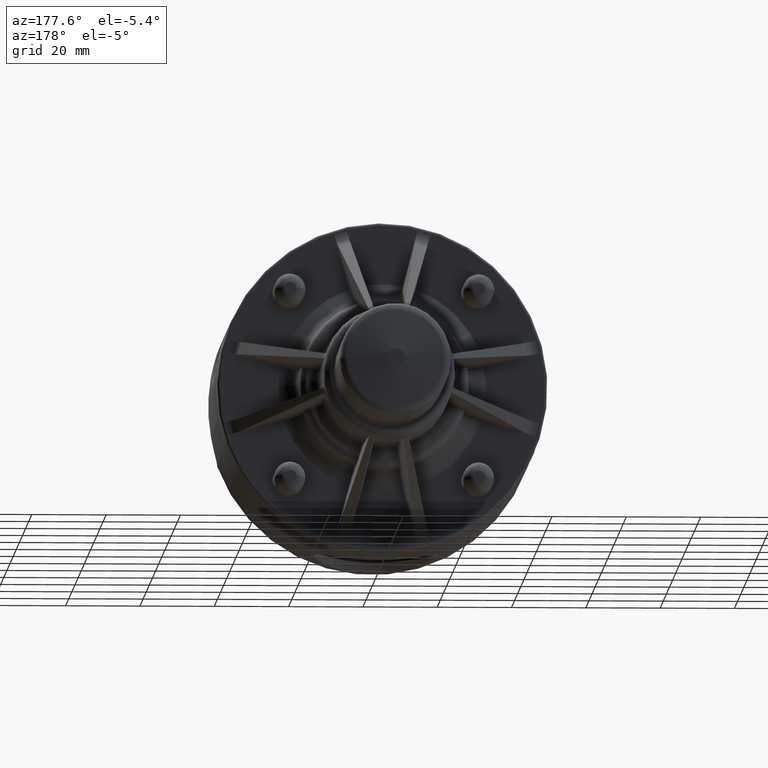
[diagram: clean part render]
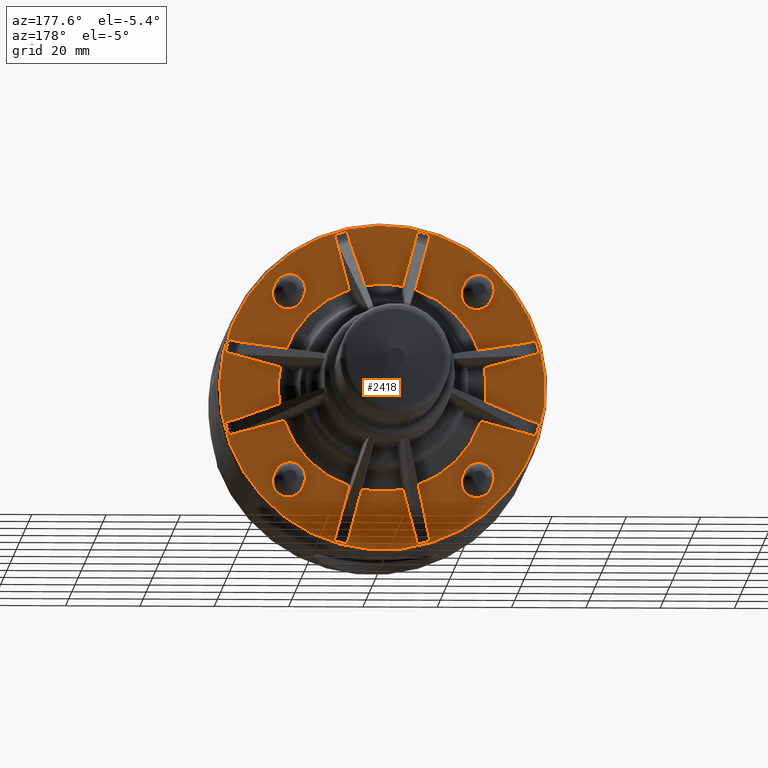
[diagram: same view with one face highlighted and labeled with its STEP entity id]
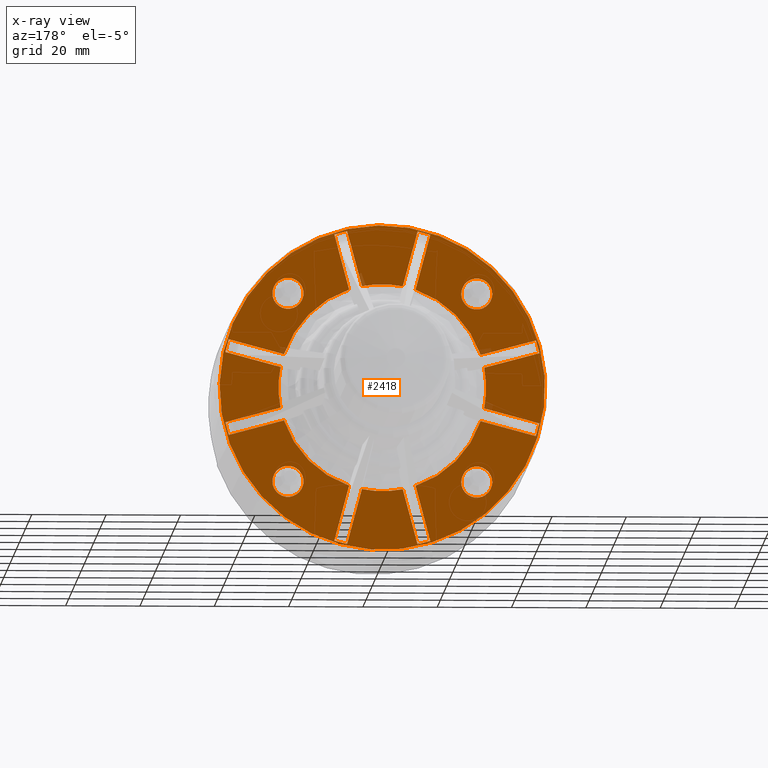
[diagram: x-ray of the same camera — body ghosted, the highlighted face saturated]
A machine part, auxiliary view. The second image highlights one B-rep face of the part: STEP entity #2418.
The next image is the same camera in x-ray: the body ghosted, the highlighted face saturated — about 1% of this face is hidden behind the body in this view.
In plain terms, the highlighted planar face has unit normal (0, 1, 0).
Its self-contained STEP definition (entity closure, byte-faithful):
#434=CARTESIAN_POINT('',(-0.835151011402223,2.555000000000000,-1.000151011402222));
#435=VERTEX_POINT('',#434);
#436=CARTESIAN_POINT('',(-1.000151011402223,2.555000000000000,-1.000151011402222));
#437=DIRECTION('',(0.0,-1.0,0.0));
#438=DIRECTION('',(-1.0,0.0,0.0));
#439=AXIS2_PLACEMENT_3D('',#436,#437,#438);
#440=CIRCLE('',#439,0.165000000000000);
#441=EDGE_CURVE('',#435,#435,#440,.T.);
#697=CARTESIAN_POINT('',(-0.835151011402223,2.555000000000000,0.999848988597778));
#698=VERTEX_POINT('',#697);
#699=CARTESIAN_POINT('',(-1.000151011402223,2.555000000000000,0.999848988597778));
#700=DIRECTION('',(0.0,-1.0,0.0));
#701=DIRECTION('',(-1.0,0.0,0.0));
#702=AXIS2_PLACEMENT_3D('',#699,#700,#701);
#703=CIRCLE('',#702,0.165000000000000);
#704=EDGE_CURVE('',#698,#698,#703,.T.);
#802=CARTESIAN_POINT('',(1.164848988597778,2.555000000000001,-1.000151011402222));
#803=VERTEX_POINT('',#802);
#804=CARTESIAN_POINT('',(0.999848988597778,2.555000000000001,-1.000151011402222));
#805=DIRECTION('',(0.0,-1.0,0.0));
#806=DIRECTION('',(-1.0,0.0,0.0));
#807=AXIS2_PLACEMENT_3D('',#804,#805,#806);
#808=CIRCLE('',#807,0.165000000000000);
#809=EDGE_CURVE('',#803,#803,#808,.T.);
#907=CARTESIAN_POINT('',(1.164848988597778,2.555000000000001,0.999848988597778));
#908=VERTEX_POINT('',#907);
#909=CARTESIAN_POINT('',(0.999848988597778,2.555000000000001,0.999848988597778));
#910=DIRECTION('',(0.0,-1.0,0.0));
#911=DIRECTION('',(-1.0,0.0,0.0));
#912=AXIS2_PLACEMENT_3D('',#909,#910,#911);
#913=CIRCLE('',#912,0.165000000000000);
#914=EDGE_CURVE('',#908,#908,#913,.T.);
#1159=CARTESIAN_POINT('',(-1.627893014331028,2.555000000000001,0.508661951182970));
#1160=VERTEX_POINT('',#1159);
#1178=CARTESIAN_POINT('',(-1.664127680645382,2.555000000000001,0.373432335502499));
#1179=VERTEX_POINT('',#1178);
#1187=CARTESIAN_POINT('',(-1.664127680645382,2.555000000000001,0.373432335502499));
#1188=DIRECTION('',(0.258819045102522,0.0,0.965925826289068));
#1189=VECTOR('',#1188,0.140000000000002);
#1190=LINE('',#1187,#1189);
#1191=EDGE_CURVE('',#1179,#1160,#1190,.T.);
#1287=CARTESIAN_POINT('',(-1.042247513039789,2.555000000000000,0.351738712061063));
#1288=VERTEX_POINT('',#1287);
#1289=CARTESIAN_POINT('',(-1.042247513039789,2.555000000000001,0.351738712061063));
#1290=DIRECTION('',(-0.965925826289068,0.0,0.258819045102521));
#1291=VECTOR('',#1290,0.606304837651143);
#1292=LINE('',#1289,#1291);
#1293=EDGE_CURVE('',#1288,#1160,#1292,.T.);
#1375=CARTESIAN_POINT('',(-1.078482179354142,2.555000000000000,0.216509096380592));
#1376=VERTEX_POINT('',#1375);
#1377=CARTESIAN_POINT('',(-1.664127680645382,2.555000000000001,0.373432335502499));
#1378=DIRECTION('',(0.965925826289069,0.0,-0.258819045102520));
#1379=VECTOR('',#1378,0.606304837651143);
#1380=LINE('',#1377,#1379);
#1381=EDGE_CURVE('',#1179,#1376,#1380,.T.);
#1497=CARTESIAN_POINT('',(-1.078482179354141,2.555000000000000,-0.216509096380593));
#1498=VERTEX_POINT('',#1497);
#1520=CARTESIAN_POINT('',(-1.154684E-017,2.555000000000000,-6.658976E-034));
#1521=DIRECTION('',(2.259655E-018,-1.0,2.259655E-018));
#1522=DIRECTION('',(0.707106781186548,3.195635E-018,0.707106781186547));
#1523=AXIS2_PLACEMENT_3D('',#1520,#1521,#1522);
#1524=CIRCLE('',#1523,1.099999999999999);
#1525=EDGE_CURVE('',#1376,#1498,#1524,.T.);
#1833=CARTESIAN_POINT('',(1.078482179354141,2.555000000000000,-0.216509096380593));
#1834=VERTEX_POINT('',#1833);
#1857=CARTESIAN_POINT('',(1.078482179354141,2.555000000000000,0.216509096380593));
#1858=VERTEX_POINT('',#1857);
#1880=CARTESIAN_POINT('',(-1.154684E-017,2.555000000000000,-6.658976E-034));
#1881=DIRECTION('',(2.259655E-018,-1.0,2.259655E-018));
#1882=DIRECTION('',(0.707106781186548,3.195635E-018,0.707106781186547));
#1883=AXIS2_PLACEMENT_3D('',#1880,#1881,#1882);
#1884=CIRCLE('',#1883,1.099999999999999);
#1885=EDGE_CURVE('',#1834,#1858,#1884,.T.);
#2165=CARTESIAN_POINT('',(0.998788328425998,2.555000000000001,0.998788328425997));
#2166=DIRECTION('',(0.0,1.0,0.0));
#2167=DIRECTION('',(-0.707106781186547,0.0,0.707106781186548));
#2168=AXIS2_PLACEMENT_3D('',#2165,#2166,#2167);
#2169=PLANE('',#2168);
#2170=CARTESIAN_POINT('',(1.219759197546793,2.555000000000001,1.219759197546793));
#2171=VERTEX_POINT('',#2170);
#2172=CARTESIAN_POINT('',(-1.154684E-017,2.555000000000001,-6.658976E-034));
#2173=DIRECTION('',(2.259655E-018,-1.0,2.259655E-018));
#2174=DIRECTION('',(0.707106781186548,3.195635E-018,0.707106781186547));
#2175=AXIS2_PLACEMENT_3D('',#2172,#2173,#2174);
#2176=CIRCLE('',#2175,1.724999999999998);
#2177=EDGE_CURVE('',#2171,#2171,#2176,.T.);
#2178=ORIENTED_EDGE('',*,*,#2177,.F.);
#2179=EDGE_LOOP('',(#2178));
#2180=FACE_OUTER_BOUND('',#2179,.T.);
#2181=ORIENTED_EDGE('',*,*,#441,.T.);
#2182=EDGE_LOOP('',(#2181));
#2183=FACE_BOUND('',#2182,.T.);
#2184=ORIENTED_EDGE('',*,*,#704,.T.);
#2185=EDGE_LOOP('',(#2184));
#2186=FACE_BOUND('',#2185,.T.);
#2187=ORIENTED_EDGE('',*,*,#809,.T.);
#2188=EDGE_LOOP('',(#2187));
#2189=FACE_BOUND('',#2188,.T.);
#2190=ORIENTED_EDGE('',*,*,#914,.T.);
#2191=EDGE_LOOP('',(#2190));
#2192=FACE_BOUND('',#2191,.T.);
#2193=ORIENTED_EDGE('',*,*,#1381,.T.);
#2194=ORIENTED_EDGE('',*,*,#1525,.T.);
#2195=CARTESIAN_POINT('',(-1.664127680645381,2.555000000000001,-0.373432335502501));
#2196=VERTEX_POINT('',#2195);
#2197=CARTESIAN_POINT('',(-1.078482179354140,2.555000000000001,-0.216509096380593));
#2198=DIRECTION('',(-0.965925826289068,0.0,-0.258819045102521));
#2199=VECTOR('',#2198,0.606304837651144);
#2200=LINE('',#2197,#2199);
#2201=EDGE_CURVE('',#1498,#2196,#2200,.T.);
#2202=ORIENTED_EDGE('',*,*,#2201,.T.);
#2203=CARTESIAN_POINT('',(-1.627893014331028,2.555000000000001,-0.508661951182972));
#2204=VERTEX_POINT('',#2203);
#2205=CARTESIAN_POINT('',(-1.627893014331028,2.555000000000001,-0.508661951182972));
#2206=DIRECTION('',(-0.258819045102522,0.0,0.965925826289068));
#2207=VECTOR('',#2206,0.140000000000001);
#2208=LINE('',#2205,#2207);
#2209=EDGE_CURVE('',#2204,#2196,#2208,.T.);
#2210=ORIENTED_EDGE('',*,*,#2209,.F.);
#2211=CARTESIAN_POINT('',(-1.042247513039788,2.555000000000000,-0.351738712061064));
#2212=VERTEX_POINT('',#2211);
#2213=CARTESIAN_POINT('',(-1.627893014331028,2.555000000000001,-0.508661951182972));
#2214=DIRECTION('',(0.965925826289068,0.0,0.258819045102521));
#2215=VECTOR('',#2214,0.606304837651144);
#2216=LINE('',#2213,#2215);
#2217=EDGE_CURVE('',#2204,#2212,#2216,.T.);
#2218=ORIENTED_EDGE('',*,*,#2217,.T.);
#2219=CARTESIAN_POINT('',(-0.351738712061063,2.555000000000000,-1.042247513039788));
#2220=VERTEX_POINT('',#2219);
#2221=CARTESIAN_POINT('',(-1.154684E-017,2.555000000000000,-6.658976E-034));
#2222=DIRECTION('',(2.259655E-018,-1.0,2.259655E-018));
#2223=DIRECTION('',(0.707106781186548,3.195635E-018,0.707106781186547));
#2224=AXIS2_PLACEMENT_3D('',#2221,#2222,#2223);
#2225=CIRCLE('',#2224,1.099999999999999);
#2226=EDGE_CURVE('',#2212,#2220,#2225,.T.);
#2227=ORIENTED_EDGE('',*,*,#2226,.T.);
#2228=CARTESIAN_POINT('',(-0.508661951182971,2.555000000000001,-1.627893014331028));
#2229=VERTEX_POINT('',#2228);
#2230=CARTESIAN_POINT('',(-0.351738712061063,2.555000000000001,-1.042247513039788));
#2231=DIRECTION('',(-0.258819045102521,0.0,-0.965925826289068));
#2232=VECTOR('',#2231,0.606304837651143);
#2233=LINE('',#2230,#2232);
#2234=EDGE_CURVE('',#2220,#2229,#2233,.T.);
#2235=ORIENTED_EDGE('',*,*,#2234,.T.);
#2236=CARTESIAN_POINT('',(-0.373432335502502,2.555000000000001,-1.664127680645381));
#2237=VERTEX_POINT('',#2236);
#2238=CARTESIAN_POINT('',(-0.373432335502502,2.555000000000001,-1.664127680645381));
#2239=DIRECTION('',(-0.965925826289068,0.0,0.258819045102522));
#2240=VECTOR('',#2239,0.139999999999999);
#2241=LINE('',#2238,#2240);
#2242=EDGE_CURVE('',#2237,#2229,#2241,.T.);
#2243=ORIENTED_EDGE('',*,*,#2242,.F.);
#2244=CARTESIAN_POINT('',(-0.216509096380594,2.555000000000000,-1.078482179354141));
#2245=VERTEX_POINT('',#2244);
#2246=CARTESIAN_POINT('',(-0.373432335502502,2.555000000000001,-1.664127680645380));
#2247=DIRECTION('',(0.258819045102522,0.0,0.965925826289068));
#2248=VECTOR('',#2247,0.606304837651143);
#2249=LINE('',#2246,#2248);
#2250=EDGE_CURVE('',#2237,#2245,#2249,.T.);
#2251=ORIENTED_EDGE('',*,*,#2250,.T.);
#2252=CARTESIAN_POINT('',(0.216509096380593,2.555000000000000,-1.078482179354141));
#2253=VERTEX_POINT('',#2252);
#2254=CARTESIAN_POINT('',(-1.154684E-017,2.555000000000000,-6.658976E-034));
#2255=DIRECTION('',(2.259655E-018,-1.0,2.259655E-018));
#2256=DIRECTION('',(0.707106781186548,3.195635E-018,0.707106781186547));
#2257=AXIS2_PLACEMENT_3D('',#2254,#2255,#2256);
#2258=CIRCLE('',#2257,1.099999999999999);
#2259=EDGE_CURVE('',#2245,#2253,#2258,.T.);
#2260=ORIENTED_EDGE('',*,*,#2259,.T.);
#2261=CARTESIAN_POINT('',(0.373432335502500,2.555000000000001,-1.664127680645381));
#2262=VERTEX_POINT('',#2261);
#2263=CARTESIAN_POINT('',(0.216509096380593,2.555000000000001,-1.078482179354141));
#2264=DIRECTION('',(0.258819045102521,0.0,-0.965925826289068));
#2265=VECTOR('',#2264,0.606304837651144);
#2266=LINE('',#2263,#2265);
#2267=EDGE_CURVE('',#2253,#2262,#2266,.T.);
#2268=ORIENTED_EDGE('',*,*,#2267,.T.);
#2269=CARTESIAN_POINT('',(0.508661951182968,2.555000000000001,-1.627893014331028));
#2270=VERTEX_POINT('',#2269);
#2271=CARTESIAN_POINT('',(0.508661951182968,2.555000000000001,-1.627893014331028));
#2272=DIRECTION('',(-0.965925826289068,0.0,-0.258819045102522));
#2273=VECTOR('',#2272,0.139999999999998);
#2274=LINE('',#2271,#2273);
#2275=EDGE_CURVE('',#2270,#2262,#2274,.T.);
#2276=ORIENTED_EDGE('',*,*,#2275,.F.);
#2277=CARTESIAN_POINT('',(0.351738712061061,2.555000000000000,-1.042247513039789));
#2278=VERTEX_POINT('',#2277);
#2279=CARTESIAN_POINT('',(0.508661951182968,2.555000000000001,-1.627893014331028));
#2280=DIRECTION('',(-0.258819045102520,0.0,0.965925826289069));
#2281=VECTOR('',#2280,0.606304837651143);
#2282=LINE('',#2279,#2281);
#2283=EDGE_CURVE('',#2270,#2278,#2282,.T.);
#2284=ORIENTED_EDGE('',*,*,#2283,.T.);
#2285=CARTESIAN_POINT('',(1.042247513039788,2.555000000000000,-0.351738712061063));
#2286=VERTEX_POINT('',#2285);
#2287=CARTESIAN_POINT('',(-1.154684E-017,2.555000000000000,-6.658976E-034));
#2288=DIRECTION('',(2.259655E-018,-1.0,2.259655E-018));
#2289=DIRECTION('',(0.707106781186548,3.195635E-018,0.707106781186547));
#2290=AXIS2_PLACEMENT_3D('',#2287,#2288,#2289);
#2291=CIRCLE('',#2290,1.099999999999999);
#2292=EDGE_CURVE('',#2278,#2286,#2291,.T.);
#2293=ORIENTED_EDGE('',*,*,#2292,.T.);
#2294=CARTESIAN_POINT('',(1.627893014331028,2.555000000000001,-0.508661951182971));
#2295=VERTEX_POINT('',#2294);
#2296=CARTESIAN_POINT('',(1.042247513039788,2.555000000000001,-0.351738712061063));
#2297=DIRECTION('',(0.965925826289068,0.0,-0.258819045102521));
#2298=VECTOR('',#2297,0.606304837651143);
#2299=LINE('',#2296,#2298);
#2300=EDGE_CURVE('',#2286,#2295,#2299,.T.);
#2301=ORIENTED_EDGE('',*,*,#2300,.T.);
#2302=CARTESIAN_POINT('',(1.664127680645381,2.555000000000001,-0.373432335502501));
#2303=VERTEX_POINT('',#2302);
#2304=CARTESIAN_POINT('',(1.664127680645381,2.555000000000001,-0.373432335502501));
#2305=DIRECTION('',(-0.258819045102522,0.0,-0.965925826289068));
#2306=VECTOR('',#2305,0.140000000000000);
#2307=LINE('',#2304,#2306);
#2308=EDGE_CURVE('',#2303,#2295,#2307,.T.);
#2309=ORIENTED_EDGE('',*,*,#2308,.F.);
#2310=CARTESIAN_POINT('',(1.664127680645381,2.555000000000001,-0.373432335502501));
#2311=DIRECTION('',(-0.965925826289068,0.0,0.258819045102521));
#2312=VECTOR('',#2311,0.606304837651143);
#2313=LINE('',#2310,#2312);
#2314=EDGE_CURVE('',#2303,#1834,#2313,.T.);
#2315=ORIENTED_EDGE('',*,*,#2314,.T.);
#2316=ORIENTED_EDGE('',*,*,#1885,.T.);
#2317=CARTESIAN_POINT('',(1.664127680645380,2.555000000000001,0.373432335502501));
#2318=VERTEX_POINT('',#2317);
#2319=CARTESIAN_POINT('',(1.078482179354141,2.555000000000001,0.216509096380593));
#2320=DIRECTION('',(0.965925826289068,0.0,0.258819045102521));
#2321=VECTOR('',#2320,0.606304837651143);
#2322=LINE('',#2319,#2321);
#2323=EDGE_CURVE('',#1858,#2318,#2322,.T.);
#2324=ORIENTED_EDGE('',*,*,#2323,.T.);
#2325=CARTESIAN_POINT('',(1.627893014331028,2.555000000000001,0.508661951182970));
#2326=VERTEX_POINT('',#2325);
#2327=CARTESIAN_POINT('',(1.627893014331028,2.555000000000001,0.508661951182970));
#2328=DIRECTION('',(0.258819045102523,0.0,-0.965925826289068));
#2329=VECTOR('',#2328,0.140000000000000);
#2330=LINE('',#2327,#2329);
#2331=EDGE_CURVE('',#2326,#2318,#2330,.T.);
#2332=ORIENTED_EDGE('',*,*,#2331,.F.);
#2333=CARTESIAN_POINT('',(1.042247513039788,2.555000000000000,0.351738712061063));
#2334=VERTEX_POINT('',#2333);
#2335=CARTESIAN_POINT('',(1.627893014331028,2.555000000000001,0.508661951182970));
#2336=DIRECTION('',(-0.965925826289068,0.0,-0.258819045102521));
#2337=VECTOR('',#2336,0.606304837651142);
#2338=LINE('',#2335,#2337);
#2339=EDGE_CURVE('',#2326,#2334,#2338,.T.);
#2340=ORIENTED_EDGE('',*,*,#2339,.T.);
#2341=CARTESIAN_POINT('',(0.351738712061063,2.555000000000000,1.042247513039788));
#2342=VERTEX_POINT('',#2341);
#2343=CARTESIAN_POINT('',(-1.154684E-017,2.555000000000000,-6.658976E-034));
#2344=DIRECTION('',(2.259655E-018,-1.0,2.259655E-018));
#2345=DIRECTION('',(0.707106781186548,3.195635E-018,0.707106781186547));
#2346=AXIS2_PLACEMENT_3D('',#2343,#2344,#2345);
#2347=CIRCLE('',#2346,1.099999999999999);
#2348=EDGE_CURVE('',#2334,#2342,#2347,.T.);
#2349=ORIENTED_EDGE('',*,*,#2348,.T.);
#2350=CARTESIAN_POINT('',(0.508661951182971,2.555000000000001,1.627893014331028));
#2351=VERTEX_POINT('',#2350);
#2352=CARTESIAN_POINT('',(0.351738712061063,2.555000000000001,1.042247513039788));
#2353=DIRECTION('',(0.258819045102521,0.0,0.965925826289068));
#2354=VECTOR('',#2353,0.606304837651143);
#2355=LINE('',#2352,#2354);
#2356=EDGE_CURVE('',#2342,#2351,#2355,.T.);
#2357=ORIENTED_EDGE('',*,*,#2356,.T.);
#2358=CARTESIAN_POINT('',(0.373432335502502,2.555000000000001,1.664127680645381));
#2359=VERTEX_POINT('',#2358);
#2360=CARTESIAN_POINT('',(0.373432335502502,2.555000000000001,1.664127680645381));
#2361=DIRECTION('',(0.965925826289068,0.0,-0.258819045102523));
#2362=VECTOR('',#2361,0.140000000000000);
#2363=LINE('',#2360,#2362);
#2364=EDGE_CURVE('',#2359,#2351,#2363,.T.);
#2365=ORIENTED_EDGE('',*,*,#2364,.F.);
#2366=CARTESIAN_POINT('',(0.216509096380594,2.555000000000000,1.078482179354141));
#2367=VERTEX_POINT('',#2366);
#2368=CARTESIAN_POINT('',(0.373432335502502,2.555000000000001,1.664127680645381));
#2369=DIRECTION('',(-0.258819045102521,0.0,-0.965925826289068));
#2370=VECTOR('',#2369,0.606304837651143);
#2371=LINE('',#2368,#2370);
#2372=EDGE_CURVE('',#2359,#2367,#2371,.T.);
#2373=ORIENTED_EDGE('',*,*,#2372,.T.);
#2374=CARTESIAN_POINT('',(-0.216509096380593,2.555000000000000,1.078482179354141));
#2375=VERTEX_POINT('',#2374);
#2376=CARTESIAN_POINT('',(-1.154684E-017,2.555000000000000,-6.658976E-034));
#2377=DIRECTION('',(2.259655E-018,-1.0,2.259655E-018));
#2378=DIRECTION('',(0.707106781186548,3.195635E-018,0.707106781186547));
#2379=AXIS2_PLACEMENT_3D('',#2376,#2377,#2378);
#2380=CIRCLE('',#2379,1.099999999999999);
#2381=EDGE_CURVE('',#2367,#2375,#2380,.T.);
#2382=ORIENTED_EDGE('',*,*,#2381,.T.);
#2383=CARTESIAN_POINT('',(-0.373432335502500,2.555000000000001,1.664127680645381));
#2384=VERTEX_POINT('',#2383);
#2385=CARTESIAN_POINT('',(-0.216509096380593,2.555000000000001,1.078482179354141));
#2386=DIRECTION('',(-0.258819045102521,0.0,0.965925826289068));
#2387=VECTOR('',#2386,0.606304837651144);
#2388=LINE('',#2385,#2387);
#2389=EDGE_CURVE('',#2375,#2384,#2388,.T.);
#2390=ORIENTED_EDGE('',*,*,#2389,.T.);
#2391=CARTESIAN_POINT('',(-0.508661951182969,2.555000000000001,1.627893014331029));
#2392=VERTEX_POINT('',#2391);
#2393=CARTESIAN_POINT('',(-0.508661951182969,2.555000000000001,1.627893014331028));
#2394=DIRECTION('',(0.965925826289068,0.0,0.258819045102521));
#2395=VECTOR('',#2394,0.139999999999999);
#2396=LINE('',#2393,#2395);
#2397=EDGE_CURVE('',#2392,#2384,#2396,.T.);
#2398=ORIENTED_EDGE('',*,*,#2397,.F.);
#2399=CARTESIAN_POINT('',(-0.351738712061062,2.555000000000000,1.042247513039789));
#2400=VERTEX_POINT('',#2399);
#2401=CARTESIAN_POINT('',(-0.508661951182969,2.555000000000001,1.627893014331028));
#2402=DIRECTION('',(0.258819045102520,0.0,-0.965925826289069));
#2403=VECTOR('',#2402,0.606304837651143);
#2404=LINE('',#2401,#2403);
#2405=EDGE_CURVE('',#2392,#2400,#2404,.T.);
#2406=ORIENTED_EDGE('',*,*,#2405,.T.);
#2407=CARTESIAN_POINT('',(-1.154684E-017,2.555000000000000,-6.658976E-034));
#2408=DIRECTION('',(2.259655E-018,-1.0,2.259655E-018));
#2409=DIRECTION('',(0.707106781186548,3.195635E-018,0.707106781186547));
#2410=AXIS2_PLACEMENT_3D('',#2407,#2408,#2409);
#2411=CIRCLE('',#2410,1.099999999999999);
#2412=EDGE_CURVE('',#2400,#1288,#2411,.T.);
#2413=ORIENTED_EDGE('',*,*,#2412,.T.);
#2414=ORIENTED_EDGE('',*,*,#1293,.T.);
#2415=ORIENTED_EDGE('',*,*,#1191,.F.);
#2416=EDGE_LOOP('',(#2193,#2194,#2202,#2210,#2218,#2227,#2235,#2243,#2251,#2260,#2268,#2276,#2284,#2293,#2301,#2309,#2315,#2316,#2324,#2332,#2340,#2349,#2357,#2365,#2373,#2382,#2390,#2398,#2406,#2413,#2414,#2415));
#2417=FACE_BOUND('',#2416,.T.);
#2418=ADVANCED_FACE('',(#2180,#2183,#2186,#2189,#2192,#2417),#2169,.T.);